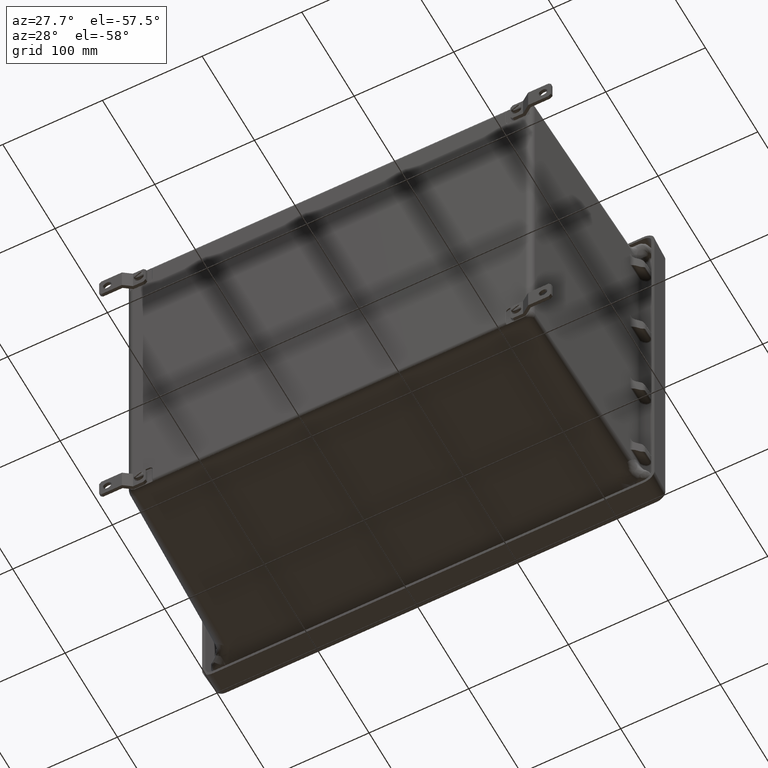
[diagram: clean part render]
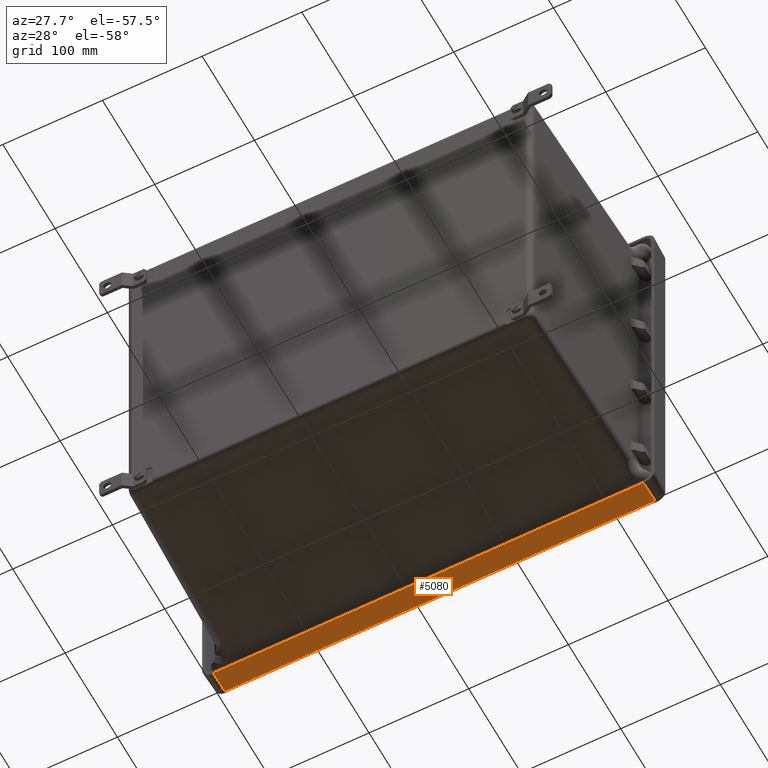
[diagram: same view with one face highlighted and labeled with its STEP entity id]
A machine part, auxiliary view. The second image highlights one B-rep face of the part: STEP entity #5080.
In plain terms, the highlighted planar face has unit normal (0, 0.0523, -0.9986).
Its self-contained STEP definition (entity closure, byte-faithful):
#4014 = VECTOR ( 'NONE', #30655, 39.37007874015748100 ) ;
#4352 = EDGE_LOOP ( 'NONE', ( #37523, #26774, #10368, #20943 ) ) ;
#5080 = ADVANCED_FACE ( 'NONE', ( #37844 ), #33158, .T. ) ;
#5118 = CARTESIAN_POINT ( 'NONE',  ( -8.495999999999996900, 0.0000000000000000000, -7.995000000000000100 ) ) ;
#7393 = CARTESIAN_POINT ( 'NONE',  ( -8.495999999999996900, 0.8815419945303677500, -7.948800341721921300 ) ) ;
#10298 = DIRECTION ( 'NONE',  ( 3.926056120607422600E-016, -0.9986295347545738300, -0.05233595624294388300 ) ) ;
#10368 = ORIENTED_EDGE ( 'NONE', *, *, #41184, .T. ) ;
#12174 = DIRECTION ( 'NONE',  ( 0.0000000000000000000, 0.05233595624294388300, -0.9986295347545739400 ) ) ;
#12243 = VECTOR ( 'NONE', #37022, 39.37007874015748100 ) ;
#13343 = LINE ( 'NONE', #44014, #12243 ) ;
#13379 = LINE ( 'NONE', #44386, #4014 ) ;
#14246 = VECTOR ( 'NONE', #39249, 39.37007874015748100 ) ;
#15381 = LINE ( 'NONE', #39105, #14246 ) ;
#17296 = EDGE_CURVE ( 'NONE', #41220, #40796, #13379, .T. ) ;
#18818 = EDGE_CURVE ( 'NONE', #34963, #40796, #31409, .T. ) ;
#19790 = AXIS2_PLACEMENT_3D ( 'NONE', #5118, #12174, #36658 ) ;
#20943 = ORIENTED_EDGE ( 'NONE', *, *, #17296, .T. ) ;
#21050 = VECTOR ( 'NONE', #10298, 39.37007874015748100 ) ;
#22025 = VERTEX_POINT ( 'NONE', #28284 ) ;
#26774 = ORIENTED_EDGE ( 'NONE', *, *, #38474, .T. ) ;
#28284 = CARTESIAN_POINT ( 'NONE',  ( 8.495999999999995100, 0.8815419945303677500, -7.948800341721921300 ) ) ;
#30655 = DIRECTION ( 'NONE',  ( -1.000000000000000000, -0.0000000000000000000, -0.0000000000000000000 ) ) ;
#31409 = LINE ( 'NONE', #41813, #21050 ) ;
#33158 = PLANE ( 'NONE',  #19790 ) ;
#34963 = VERTEX_POINT ( 'NONE', #7393 ) ;
#35904 = CARTESIAN_POINT ( 'NONE',  ( 8.495999999999995100, 0.0000000000000000000, -7.995000000000000100 ) ) ;
#36658 = DIRECTION ( 'NONE',  ( 0.0000000000000000000, 0.9986295347545738300, 0.05233595624294387600 ) ) ;
#37022 = DIRECTION ( 'NONE',  ( 1.000000000000000000, -0.0000000000000000000, -0.0000000000000000000 ) ) ;
#37523 = ORIENTED_EDGE ( 'NONE', *, *, #18818, .F. ) ;
#37844 = FACE_OUTER_BOUND ( 'NONE', #4352, .T. ) ;
#38474 = EDGE_CURVE ( 'NONE', #34963, #22025, #13343, .T. ) ;
#39001 = CARTESIAN_POINT ( 'NONE',  ( -8.495999999999996900, 0.0000000000000000000, -7.995000000000000100 ) ) ;
#39105 = CARTESIAN_POINT ( 'NONE',  ( 8.495999999999995100, 0.0000000000000000000, -7.995000000000000100 ) ) ;
#39249 = DIRECTION ( 'NONE',  ( -0.0000000000000000000, -0.9986295347545738300, -0.05233595624294388300 ) ) ;
#40796 = VERTEX_POINT ( 'NONE', #39001 ) ;
#41184 = EDGE_CURVE ( 'NONE', #22025, #41220, #15381, .T. ) ;
#41220 = VERTEX_POINT ( 'NONE', #35904 ) ;
#41813 = CARTESIAN_POINT ( 'NONE',  ( -8.495999999999996900, 0.0000000000000000000, -7.995000000000000100 ) ) ;
#44014 = CARTESIAN_POINT ( 'NONE',  ( 8.495999999999989800, 0.8815419945303678600, -7.948800341721921300 ) ) ;
#44386 = CARTESIAN_POINT ( 'NONE',  ( -8.495999999999996900, 0.0000000000000000000, -7.995000000000000100 ) ) ;